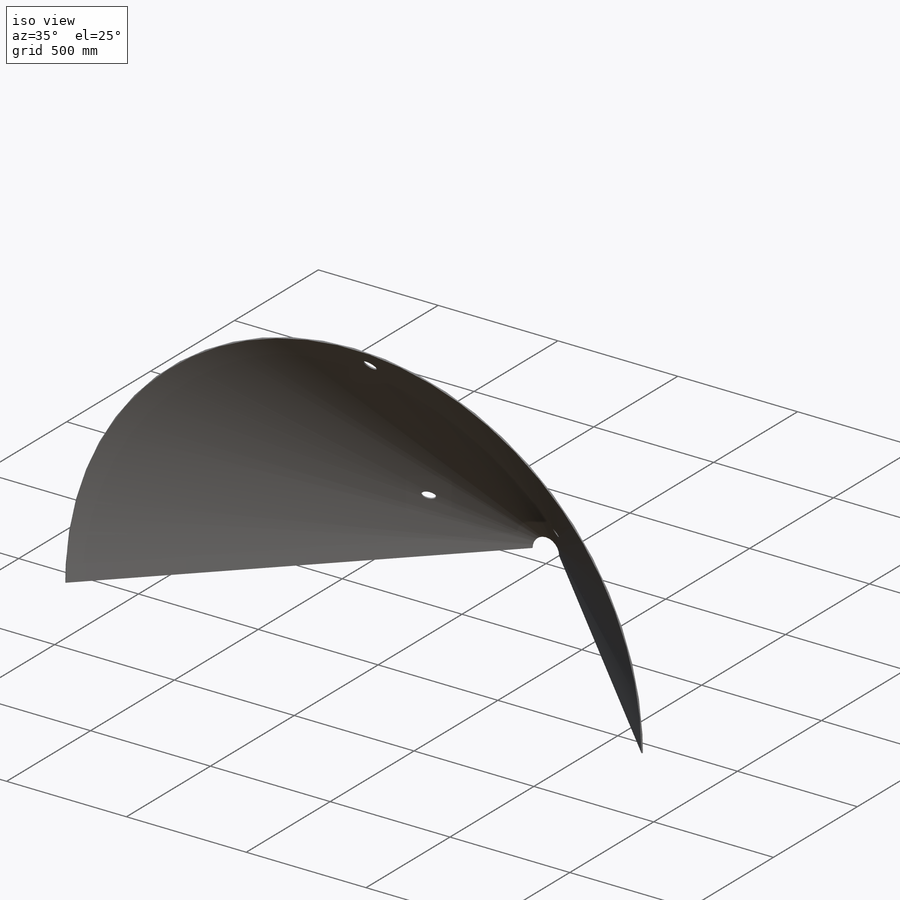
[diagram: iso view]
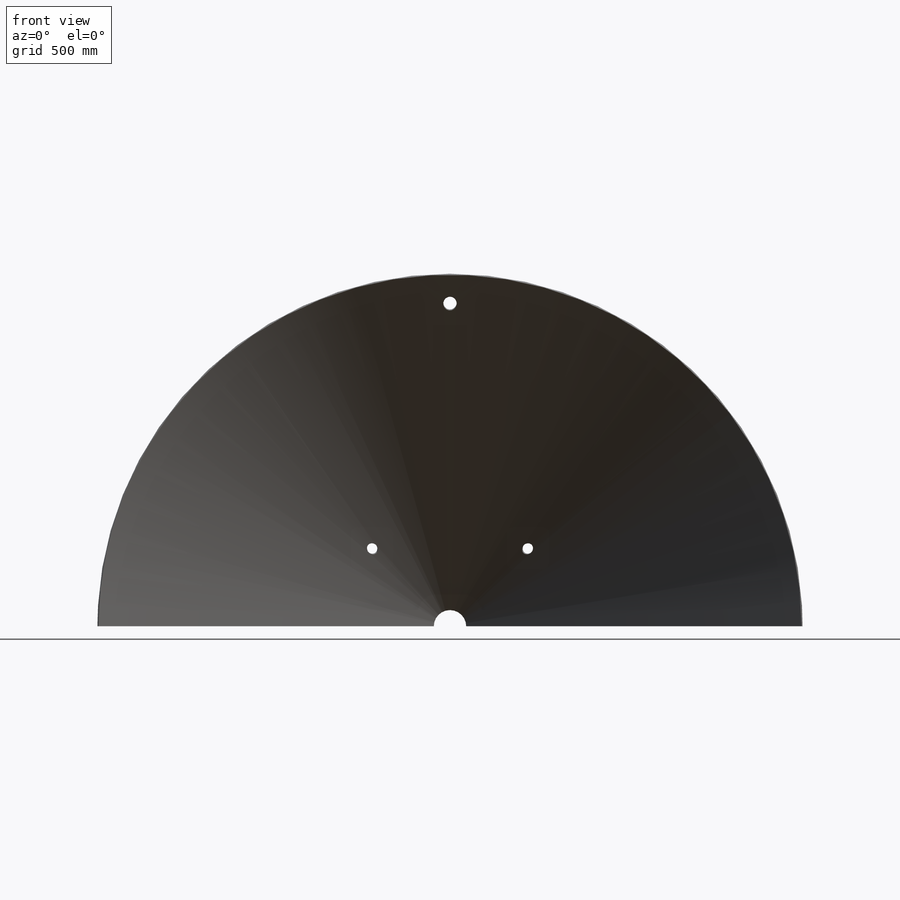
[diagram: front view]
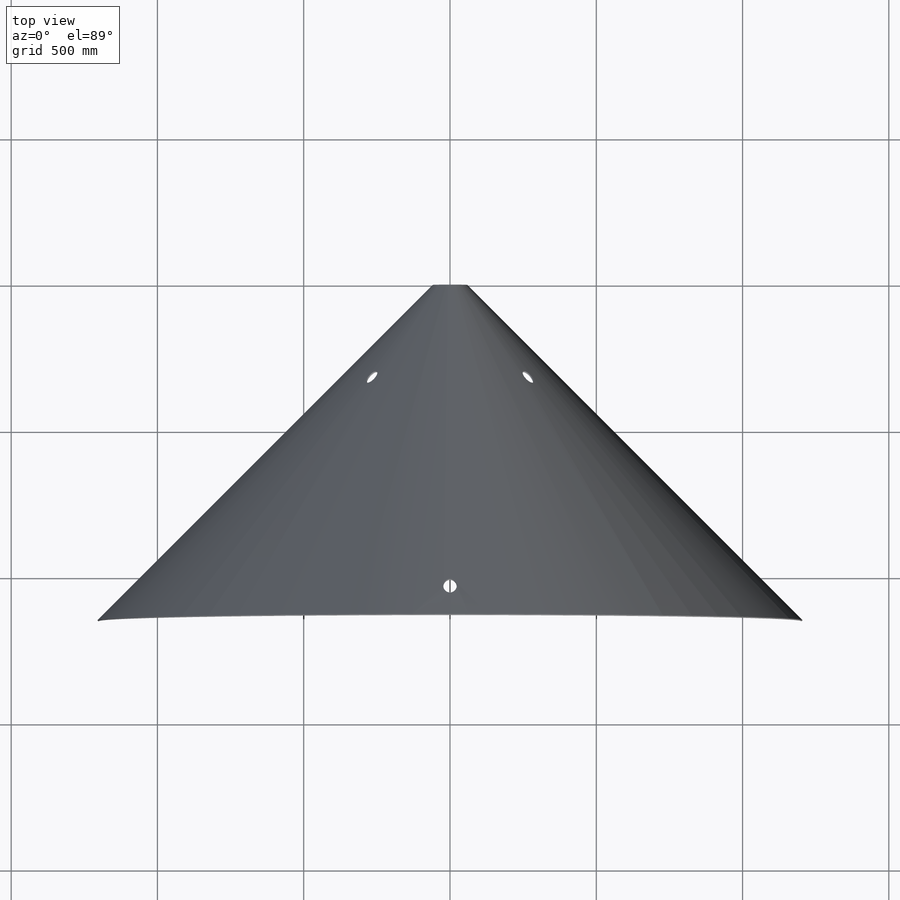
[diagram: top view]
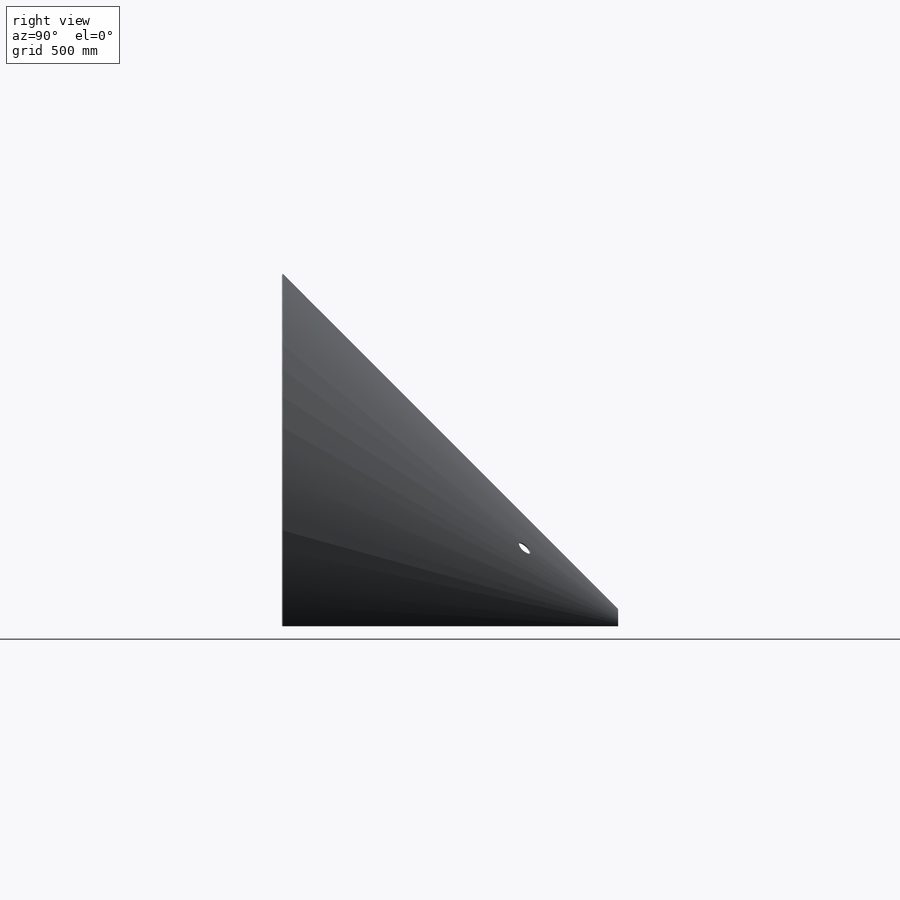
[diagram: right view]
SOLIDWORKS PART (.sldprt)
format: sldprt  version: not decoded by parser v0  size: 1,219,072 bytes
history: native  units: mm
features: sketch x12, plane x4, material x1, cut_extrude x1, sheet_metal_op x1 + 2 further entries (+10 scaffold rows collapsed; 1 parser-record rows omitted)
feature tree (32):
  scaffold x10  (default folders/planes/origin — collapsed)
  material  "Material <nicht angegeben>"
  plane  "Ebene vorne"
  plane  "Ebene oben"
  plane  "Ebene rechts"
  sketch  "Skizze1"  dims[D1=~110.765144mm D2=~1.052696mm]
  sketch  "Skizze2"  dims[c1.D1=~1201.775126mm c1.D2=~1621.23397mm c1.D3=~1201.775126mm c2.D2=~55.382572mm c2.D3=~1621.23397mm]
  plane  "Ebene1"
  sketch  "Skizze3"  dims[c1.D1=~2403.550252mm c2.D1=1.5mm c2.D2=0.5 c2.D3=0.0mm c2.D6=500.0mm c3.D1=1000.0mm c3.D4=180.0deg c3.D5=1.0 c3.D8=0.75mm c3.D9=0.75mm c4.D1=0.0mm]
  parser-record x1  (decoder bookkeeping rows leaked as tree rows — omitted from the tree; the rows remain in map.json)
  sketch  "Skizze9"  dims[D1=~10.230597mm]
  sketch  "Skizze8"  dims[D1=~1699.556275mm]
  sketch  "Skizze10"
  cut_extrude  "Schnitt-Linear austragen1"  Depth=1mm Skizzen-Transformation3=0
  sketch  "Biegung-Linien1"
  sketch  "Rahmen1"
  sheet_metal_op  "Blech4"
  "Abwicklung4"
  sketch  "Biegung-Linien2"
  sketch  "Rahmen2"  dims[Skizzen-Transformation1=0.0 Blech5=0.0deg D1=1.5mm D2=500.0mm D3=0.0mm D7=1.5mm D6=500.0mm]
  sketch  "Biegung-Linien2"
  sketch  "Rahmen2"
  "Abwickeln-<Freiform-Biegung1>1"  Skizzen-Transformation1=0
decode coverage: 7 of 14 modeling features carry decoded parameters; 2 rows unclassified (native names shown)
note: ~ marks probable driven/reference dimensions
note: suppression state not decoded; provenance and decode notes live in map.json
